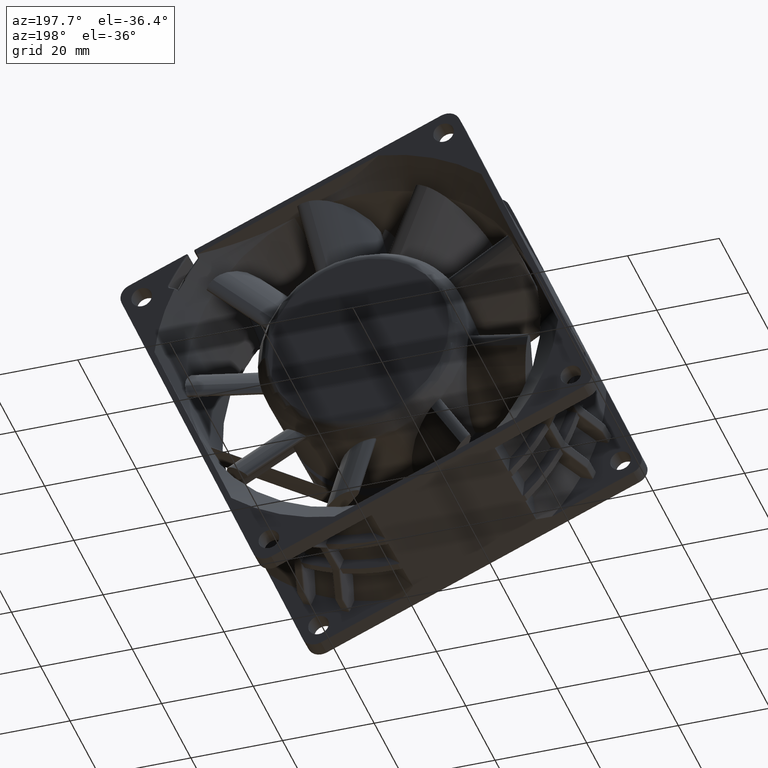
[diagram: clean part render]
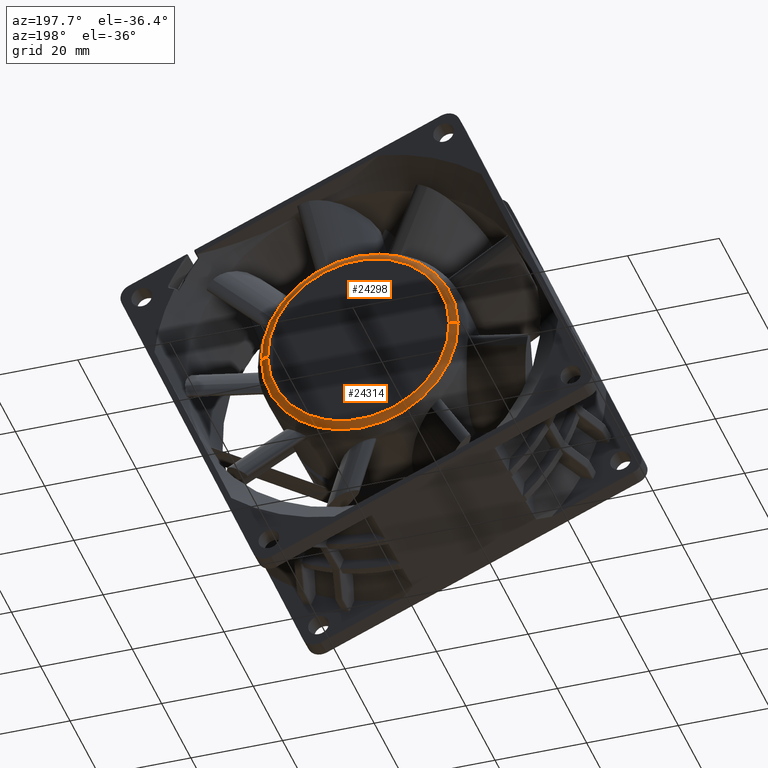
[diagram: same view with one multi-face feature highlighted, each face labeled with its STEP entity id]
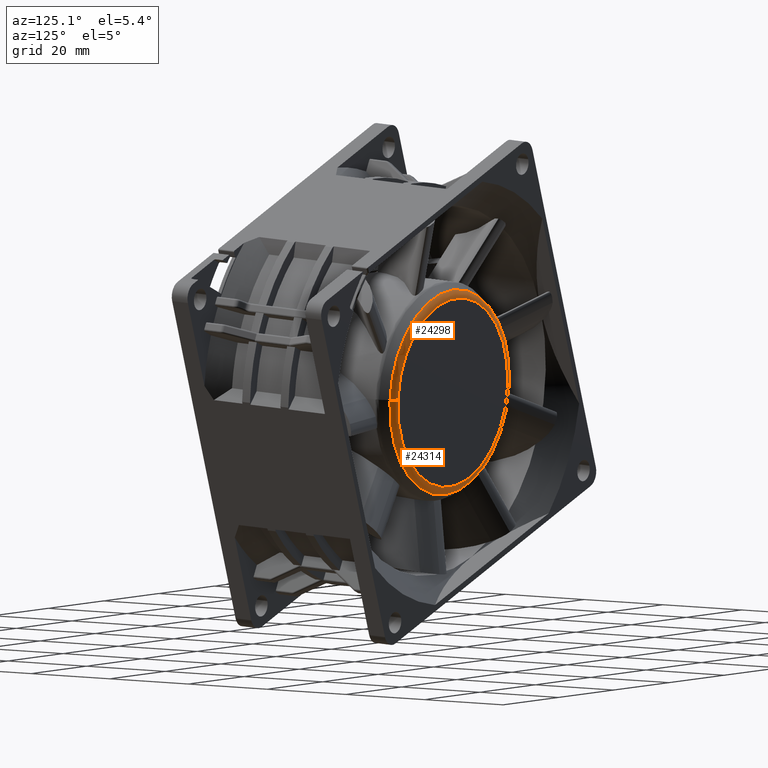
[diagram: same view with one multi-face feature highlighted, each face labeled with its STEP entity id]
A machine part, auxiliary view. The highlighted faces form ONE feature: a constant-radius fillet chain: 2 tangent blend faces with common blend radius 2 mm. The faces share edges in the B-rep.
A second angle (auxiliary view) of the same feature is appended — it is thin or edge-on in the first view.
Their STEP definitions:
[1] entity #24314 (Torus):
#21339=CARTESIAN_POINT('',(-4.223094096645E-12,1.9825E1,-3.401116220265E0));
#21340=DIRECTION('',(-1.E0,-2.130171039560E-13,0.E0));
#21341=DIRECTION('',(0.E0,-4.773749981979E-7,9.999999999999E-1));
#21342=AXIS2_PLACEMENT_3D('',#21339,#21340,#21341);
#21344=CARTESIAN_POINT('',(0.E0,0.E0,-2.271852685735E0));
#21345=DIRECTION('',(0.E0,0.E0,-1.E0));
#21346=DIRECTION('',(0.E0,-1.E0,0.E0));
#21347=AXIS2_PLACEMENT_3D('',#21344,#21345,#21346);
#21349=CARTESIAN_POINT('',(0.E0,0.E0,-2.271852685735E0));
#21350=DIRECTION('',(0.E0,0.E0,-1.E0));
#21351=DIRECTION('',(-8.346412080357E-3,9.999651680961E-1,0.E0));
#21352=AXIS2_PLACEMENT_3D('',#21349,#21350,#21351);
#21354=CARTESIAN_POINT('',(4.243300155693E-12,-1.9825E1,-3.401116220265E0));
#21355=DIRECTION('',(1.E0,2.140388560834E-13,0.E0));
#21356=DIRECTION('',(0.E0,4.773749981979E-7,9.999999999999E-1));
#21357=AXIS2_PLACEMENT_3D('',#21354,#21355,#21356);
#21363=CARTESIAN_POINT('',(0.E0,0.E0,-1.401116220265E0));
#21364=DIRECTION('',(0.E0,0.E0,-1.E0));
#21365=DIRECTION('',(0.E0,-1.E0,0.E0));
#21366=AXIS2_PLACEMENT_3D('',#21363,#21364,#21365);
#21616=CARTESIAN_POINT('',(0.E0,-2.147568587853E1,-2.271852685735E0));
#21618=VERTEX_POINT('',#21616);
#21619=CARTESIAN_POINT('',(-1.160693849498E-10,2.147568587853E1,
-2.271852685735E0));
#21620=VERTEX_POINT('',#21619);
#21621=CARTESIAN_POINT('',(4.243299951339E-12,-1.982499904525E1,
-1.401116220265E0));
#21622=VERTEX_POINT('',#21621);
#21623=CARTESIAN_POINT('',(-2.129839266446E-12,1.982499904525E1,
-1.401116220265E0));
#21624=VERTEX_POINT('',#21623);
#21625=CARTESIAN_POINT('',(-1.792449240505E-1,2.147493783950E1,
-2.271852685735E0));
#21626=VERTEX_POINT('',#21625);
#24299=CARTESIAN_POINT('',(0.E0,0.E0,-3.401116220265E0));
#24300=DIRECTION('',(0.E0,0.E0,1.E0));
#24301=DIRECTION('',(8.346412080357E-3,-9.999651680961E-1,0.E0));
#24302=AXIS2_PLACEMENT_3D('',#24299,#24300,#24301);
#24303=TOROIDAL_SURFACE('',#24302,1.9825E1,2.E0);
#24305=ORIENTED_EDGE('',*,*,#24304,.T.);
#24307=ORIENTED_EDGE('',*,*,#24306,.T.);
#24308=ORIENTED_EDGE('',*,*,#24294,.F.);
#24310=ORIENTED_EDGE('',*,*,#24309,.F.);
#24311=ORIENTED_EDGE('',*,*,#24290,.T.);
#24312=EDGE_LOOP('',(#24305,#24307,#24308,#24310,#24311));
#24313=FACE_OUTER_BOUND('',#24312,.F.);
#21343=CIRCLE('',#21342,2.E0);
#21348=CIRCLE('',#21347,2.147568587853E1);
#21353=CIRCLE('',#21352,2.147568587853E1);
#21358=CIRCLE('',#21357,2.E0);
#21367=CIRCLE('',#21366,1.982499904525E1);
#24290=EDGE_CURVE('',#21622,#21618,#21358,.T.);
#24294=EDGE_CURVE('',#21624,#21620,#21343,.T.);
#24304=EDGE_CURVE('',#21618,#21626,#21348,.T.);
#24306=EDGE_CURVE('',#21626,#21620,#21353,.T.);
#24309=EDGE_CURVE('',#21622,#21624,#21367,.T.);
#24314=ADVANCED_FACE('',(#24313),#24303,.T.);
[2] entity #24298 (Torus):
#21329=CARTESIAN_POINT('',(0.E0,0.E0,-2.271852685735E0));
#21330=DIRECTION('',(0.E0,0.E0,-1.E0));
#21331=DIRECTION('',(-5.404688148555E-12,1.E0,0.E0));
#21332=AXIS2_PLACEMENT_3D('',#21329,#21330,#21331);
#21334=CARTESIAN_POINT('',(0.E0,0.E0,-2.271852685735E0));
#21335=DIRECTION('',(0.E0,0.E0,-1.E0));
#21336=DIRECTION('',(8.346412077424E-3,-9.999651680961E-1,0.E0));
#21337=AXIS2_PLACEMENT_3D('',#21334,#21335,#21336);
#21339=CARTESIAN_POINT('',(-4.223094096645E-12,1.9825E1,-3.401116220265E0));
#21340=DIRECTION('',(-1.E0,-2.130171039560E-13,0.E0));
#21341=DIRECTION('',(0.E0,-4.773749981979E-7,9.999999999999E-1));
#21342=AXIS2_PLACEMENT_3D('',#21339,#21340,#21341);
#21354=CARTESIAN_POINT('',(4.243300155693E-12,-1.9825E1,-3.401116220265E0));
#21355=DIRECTION('',(1.E0,2.140388560834E-13,0.E0));
#21356=DIRECTION('',(0.E0,4.773749981979E-7,9.999999999999E-1));
#21357=AXIS2_PLACEMENT_3D('',#21354,#21355,#21356);
#21368=CARTESIAN_POINT('',(0.E0,0.E0,-1.401116220265E0));
#21369=DIRECTION('',(0.E0,0.E0,-1.E0));
#21370=DIRECTION('',(-1.074319984371E-13,1.E0,0.E0));
#21371=AXIS2_PLACEMENT_3D('',#21368,#21369,#21370);
#21615=CARTESIAN_POINT('',(1.792449239875E-1,-2.147493783950E1,
-2.271852685735E0));
#21616=CARTESIAN_POINT('',(0.E0,-2.147568587853E1,-2.271852685735E0));
#21617=VERTEX_POINT('',#21615);
#21618=VERTEX_POINT('',#21616);
#21619=CARTESIAN_POINT('',(-1.160693849498E-10,2.147568587853E1,
-2.271852685735E0));
#21620=VERTEX_POINT('',#21619);
#21621=CARTESIAN_POINT('',(4.243299951339E-12,-1.982499904525E1,
-1.401116220265E0));
#21622=VERTEX_POINT('',#21621);
#21623=CARTESIAN_POINT('',(-2.129839266446E-12,1.982499904525E1,
-1.401116220265E0));
#21624=VERTEX_POINT('',#21623);
#24283=CARTESIAN_POINT('',(0.E0,0.E0,-3.401116220265E0));
#24284=DIRECTION('',(0.E0,0.E0,1.E0));
#24285=DIRECTION('',(-8.346412077424E-3,9.999651680961E-1,0.E0));
#24286=AXIS2_PLACEMENT_3D('',#24283,#24284,#24285);
#24287=TOROIDAL_SURFACE('',#24286,1.9825E1,2.E0);
#24288=ORIENTED_EDGE('',*,*,#24272,.T.);
#24289=ORIENTED_EDGE('',*,*,#24270,.T.);
#24291=ORIENTED_EDGE('',*,*,#24290,.F.);
#24293=ORIENTED_EDGE('',*,*,#24292,.F.);
#24295=ORIENTED_EDGE('',*,*,#24294,.T.);
#24296=EDGE_LOOP('',(#24288,#24289,#24291,#24293,#24295));
#24297=FACE_OUTER_BOUND('',#24296,.F.);
#21333=CIRCLE('',#21332,2.147568587853E1);
#21338=CIRCLE('',#21337,2.147568587853E1);
#21343=CIRCLE('',#21342,2.E0);
#21358=CIRCLE('',#21357,2.E0);
#21372=CIRCLE('',#21371,1.982499904525E1);
#24270=EDGE_CURVE('',#21617,#21618,#21338,.T.);
#24272=EDGE_CURVE('',#21620,#21617,#21333,.T.);
#24290=EDGE_CURVE('',#21622,#21618,#21358,.T.);
#24292=EDGE_CURVE('',#21624,#21622,#21372,.T.);
#24294=EDGE_CURVE('',#21624,#21620,#21343,.T.);
#24298=ADVANCED_FACE('',(#24297),#24287,.T.);